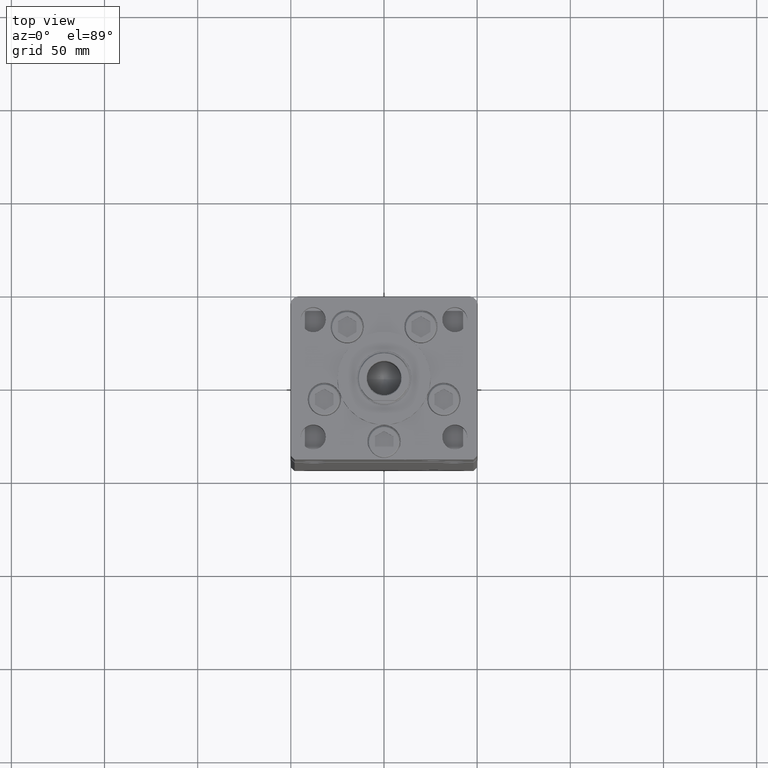
[diagram: clean part render]
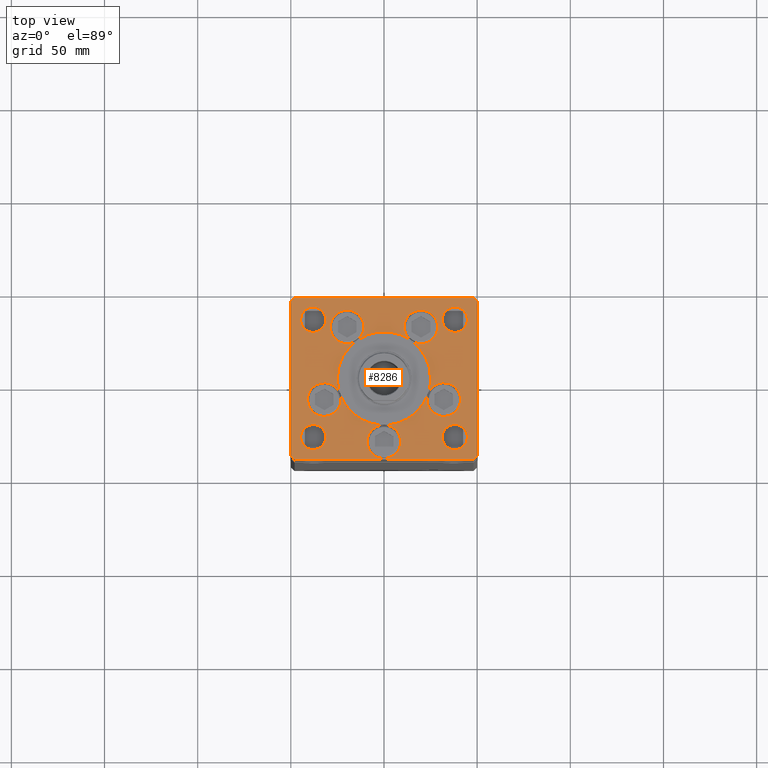
[diagram: same view with one face highlighted and labeled with its STEP entity id]
A machine part, top view. The second image highlights one B-rep face of the part: STEP entity #8286.
In plain terms, the highlighted planar face has unit normal (0, 0, 1).
Its self-contained STEP definition (entity closure, byte-faithful):
#46 = DIRECTION ( 'NONE',  ( 0.000000000000000000, 0.000000000000000000, 1.000000000000000000 ) ) ;
#328 = EDGE_CURVE ( 'NONE', #22461, #20187, #51712, .T. ) ;
#406 = AXIS2_PLACEMENT_3D ( 'NONE', #24869, #692, #4706 ) ;
#692 = DIRECTION ( 'NONE',  ( 0.000000000000000000, 0.000000000000000000, 1.000000000000000000 ) ) ;
#829 = AXIS2_PLACEMENT_3D ( 'NONE', #42482, #5675, #2156 ) ;
#1033 = DIRECTION ( 'NONE',  ( 1.000000000000000000, 0.000000000000000000, 0.000000000000000000 ) ) ;
#1066 = DIRECTION ( 'NONE',  ( -1.000000000000000000, 0.000000000000000000, 0.000000000000000000 ) ) ;
#1500 = CARTESIAN_POINT ( 'NONE',  ( 0.000000000000000000, -25.00000000000000000, 0.000000000000000000 ) ) ;
#1527 = FACE_OUTER_BOUND ( 'NONE', #51032, .T. ) ;
#1542 = DIRECTION ( 'NONE',  ( 1.000000000000000000, 0.000000000000000000, 0.000000000000000000 ) ) ;
#1574 = DIRECTION ( 'NONE',  ( 0.000000000000000000, 0.000000000000000000, 1.000000000000000000 ) ) ;
#1666 = EDGE_LOOP ( 'NONE', ( #3690, #36047 ) ) ;
#1796 = CARTESIAN_POINT ( 'NONE',  ( -38.00000000000000000, 31.50000000000000000, 0.000000000000000000 ) ) ;
#1827 = DIRECTION ( 'NONE',  ( 0.000000000000000000, 0.000000000000000000, 1.000000000000000000 ) ) ;
#1839 = DIRECTION ( 'NONE',  ( 0.000000000000000000, 0.000000000000000000, 1.000000000000000000 ) ) ;
#2020 = CARTESIAN_POINT ( 'NONE',  ( -19.82068048781374969, 27.62499999999998934, 0.000000000000000000 ) ) ;
#2038 = FACE_BOUND ( 'NONE', #20109, .T. ) ;
#2156 = DIRECTION ( 'NONE',  ( -1.000000000000000000, 0.000000000000000000, 0.000000000000000000 ) ) ;
#2264 = AXIS2_PLACEMENT_3D ( 'NONE', #5587, #4789, #1033 ) ;
#2357 = CARTESIAN_POINT ( 'NONE',  ( 19.82068048781374969, 27.62499999999998934, 0.000000000000000000 ) ) ;
#2386 = CARTESIAN_POINT ( 'NONE',  ( 0.000000000000000000, -6.938893903907228378E-15, 0.000000000000000000 ) ) ;
#2413 = CARTESIAN_POINT ( 'NONE',  ( 23.57022603955158502, -8.333333333333332149, 0.000000000000000000 ) ) ;
#2888 = VECTOR ( 'NONE', #21879, 1000.000000000000000 ) ;
#2959 = CARTESIAN_POINT ( 'NONE',  ( -41.05550741379015989, -11.33333333333332682, 0.000000000000000000 ) ) ;
#3059 = CIRCLE ( 'NONE', #34815, 9.000000000000001776 ) ;
#3216 = DIRECTION ( 'NONE',  ( 1.000000000000000000, 0.000000000000000000, 0.000000000000000000 ) ) ;
#3424 = CARTESIAN_POINT ( 'NONE',  ( -44.75000000000000000, 31.50000000000000000, 0.000000000000000000 ) ) ;
#3607 = EDGE_CURVE ( 'NONE', #6492, #36206, #25237, .T. ) ;
#3690 = ORIENTED_EDGE ( 'NONE', *, *, #7855, .T. ) ;
#3768 = DIRECTION ( 'NONE',  ( 1.000000000000000000, 0.000000000000000000, 0.000000000000000000 ) ) ;
#3960 = CIRCLE ( 'NONE', #17737, 6.749999999999999112 ) ;
#4082 = LINE ( 'NONE', #40380, #14956 ) ;
#4100 = CIRCLE ( 'NONE', #17876, 6.749999999999999112 ) ;
#4395 = EDGE_CURVE ( 'NONE', #32781, #34925, #6316, .T. ) ;
#4426 = ORIENTED_EDGE ( 'NONE', *, *, #36227, .T. ) ;
#4706 = DIRECTION ( 'NONE',  ( 1.000000000000000000, 0.000000000000000000, 0.000000000000000000 ) ) ;
#4789 = DIRECTION ( 'NONE',  ( 0.000000000000000000, 0.000000000000000000, 1.000000000000000000 ) ) ;
#4929 = CARTESIAN_POINT ( 'NONE',  ( 50.00000000000000000, 41.50000000000000711, 0.000000000000000000 ) ) ;
#5015 = CIRCLE ( 'NONE', #44493, 25.00000000000000000 ) ;
#5105 = VERTEX_POINT ( 'NONE', #12342 ) ;
#5587 = CARTESIAN_POINT ( 'NONE',  ( -32.05550741379015989, -11.33333333333332860, 0.000000000000000000 ) ) ;
#5600 = ORIENTED_EDGE ( 'NONE', *, *, #37907, .F. ) ;
#5675 = DIRECTION ( 'NONE',  ( -0.000000000000000000, -0.000000000000000000, -1.000000000000000000 ) ) ;
#5856 = EDGE_CURVE ( 'NONE', #50965, #31561, #50156, .T. ) ;
#6049 = EDGE_CURVE ( 'NONE', #36206, #19740, #46765, .T. ) ;
#6316 = CIRCLE ( 'NONE', #39812, 6.749999999999999112 ) ;
#6492 = VERTEX_POINT ( 'NONE', #2413 ) ;
#6846 = CIRCLE ( 'NONE', #30007, 6.749999999999999112 ) ;
#6929 = CARTESIAN_POINT ( 'NONE',  ( -10.82068048781375147, 27.62499999999998934, 0.000000000000000000 ) ) ;
#7016 = VERTEX_POINT ( 'NONE', #3424 ) ;
#7273 = VECTOR ( 'NONE', #12257, 1000.000000000000000 ) ;
#7855 = EDGE_CURVE ( 'NONE', #8682, #7016, #24458, .T. ) ;
#8100 = VERTEX_POINT ( 'NONE', #44553 ) ;
#8205 = CIRCLE ( 'NONE', #28788, 9.000000000000000000 ) ;
#8286 = ADVANCED_FACE ( 'NONE', ( #43156, #42900, #38336, #2038, #1527, #51503 ), #10936, .T. ) ;
#8655 = CARTESIAN_POINT ( 'NONE',  ( 19.82068048781374969, 27.62499999999998934, 0.000000000000000000 ) ) ;
#8682 = VERTEX_POINT ( 'NONE', #11406 ) ;
#8705 = ORIENTED_EDGE ( 'NONE', *, *, #18212, .F. ) ;
#8830 = CARTESIAN_POINT ( 'NONE',  ( -32.05550741379015989, -11.33333333333332860, 0.000000000000000000 ) ) ;
#8903 = CIRCLE ( 'NONE', #29475, 6.749999999999999112 ) ;
#8922 = EDGE_CURVE ( 'NONE', #45002, #50970, #3059, .T. ) ;
#8982 = AXIS2_PLACEMENT_3D ( 'NONE', #30840, #47242, #25503 ) ;
#9028 = ORIENTED_EDGE ( 'NONE', *, *, #52620, .F. ) ;
#9069 = AXIS2_PLACEMENT_3D ( 'NONE', #18460, #35094, #14695 ) ;
#9215 = ORIENTED_EDGE ( 'NONE', *, *, #17388, .F. ) ;
#9379 = AXIS2_PLACEMENT_3D ( 'NONE', #15458, #32609, #44187 ) ;
#9468 = AXIS2_PLACEMENT_3D ( 'NONE', #50742, #37838, #30041 ) ;
#9499 = EDGE_LOOP ( 'NONE', ( #50068, #31147 ) ) ;
#9715 = ORIENTED_EDGE ( 'NONE', *, *, #17600, .F. ) ;
#9771 = EDGE_CURVE ( 'NONE', #31561, #10813, #8205, .T. ) ;
#10117 = CIRCLE ( 'NONE', #43591, 9.000000000000000000 ) ;
#10376 = EDGE_CURVE ( 'NONE', #51866, #18930, #31404, .T. ) ;
#10424 = DIRECTION ( 'NONE',  ( 0.000000000000000000, 0.000000000000000000, 1.000000000000000000 ) ) ;
#10585 = DIRECTION ( 'NONE',  ( 8.360113137237620037E-17, -1.000000000000000000, 0.000000000000000000 ) ) ;
#10658 = CIRCLE ( 'NONE', #8982, 6.749999999999999112 ) ;
#10761 = ORIENTED_EDGE ( 'NONE', *, *, #39636, .F. ) ;
#10813 = VERTEX_POINT ( 'NONE', #28084 ) ;
#10898 = VECTOR ( 'NONE', #12753, 1000.000000000000114 ) ;
#10936 = PLANE ( 'NONE',  #9069 ) ;
#10977 = EDGE_CURVE ( 'NONE', #24349, #5105, #3960, .T. ) ;
#11023 = CARTESIAN_POINT ( 'NONE',  ( 47.99999999999999289, 43.50000000000000000, 0.000000000000000000 ) ) ;
#11220 = DIRECTION ( 'NONE',  ( -1.000000000000000000, 0.000000000000000000, 0.000000000000000000 ) ) ;
#11317 = DIRECTION ( 'NONE',  ( 0.000000000000000000, 0.000000000000000000, 1.000000000000000000 ) ) ;
#11406 = CARTESIAN_POINT ( 'NONE',  ( -31.25000000000000000, 31.50000000000000000, 0.000000000000000000 ) ) ;
#11457 = VERTEX_POINT ( 'NONE', #2959 ) ;
#11495 = DIRECTION ( 'NONE',  ( 0.000000000000000000, 0.000000000000000000, 1.000000000000000000 ) ) ;
#11856 = EDGE_CURVE ( 'NONE', #40120, #22461, #30460, .T. ) ;
#12257 = DIRECTION ( 'NONE',  ( 0.000000000000000000, 1.000000000000000000, 0.000000000000000000 ) ) ;
#12342 = CARTESIAN_POINT ( 'NONE',  ( 31.25000000000000000, 31.50000000000000000, 0.000000000000000000 ) ) ;
#12753 = DIRECTION ( 'NONE',  ( 0.7071067811865474617, 0.7071067811865474617, 0.000000000000000000 ) ) ;
#13175 = CARTESIAN_POINT ( 'NONE',  ( -38.00000000000000000, 31.50000000000000000, 0.000000000000000000 ) ) ;
#13318 = CARTESIAN_POINT ( 'NONE',  ( 47.99999999999999289, 43.50000000000000000, 0.000000000000000000 ) ) ;
#13674 = AXIS2_PLACEMENT_3D ( 'NONE', #8830, #49940, #1542 ) ;
#13803 = AXIS2_PLACEMENT_3D ( 'NONE', #17905, #26474, #22196 ) ;
#13924 = CARTESIAN_POINT ( 'NONE',  ( -48.00000000000000000, 43.49999999999997158, 0.000000000000000000 ) ) ;
#13978 = VERTEX_POINT ( 'NONE', #37497 ) ;
#14622 = EDGE_LOOP ( 'NONE', ( #9715, #23027, #42469, #9028, #25514, #22426, #24587, #48462, #15959, #20949, #23475, #29834, #10761, #28822, #8705, #5600, #17708, #9215, #30220, #51122, #15169, #48153 ) ) ;
#14695 = DIRECTION ( 'NONE',  ( 1.000000000000000000, 0.000000000000000000, 0.000000000000000000 ) ) ;
#14713 = DIRECTION ( 'NONE',  ( 1.000000000000000000, 0.000000000000000000, 0.000000000000000000 ) ) ;
#14956 = VECTOR ( 'NONE', #24792, 999.9999999999998863 ) ;
#15051 = EDGE_CURVE ( 'NONE', #28239, #40120, #38624, .T. ) ;
#15169 = ORIENTED_EDGE ( 'NONE', *, *, #9771, .F. ) ;
#15458 = CARTESIAN_POINT ( 'NONE',  ( -32.05550741379015989, -11.33333333333332860, 0.000000000000000000 ) ) ;
#15586 = DIRECTION ( 'NONE',  ( 1.000000000000000000, 0.000000000000000000, 0.000000000000000000 ) ) ;
#15797 = DIRECTION ( 'NONE',  ( 1.000000000000000000, 0.000000000000000000, 0.000000000000000000 ) ) ;
#15959 = ORIENTED_EDGE ( 'NONE', *, *, #52893, .F. ) ;
#16153 = DIRECTION ( 'NONE',  ( 1.000000000000000000, 0.000000000000000000, 0.000000000000000000 ) ) ;
#16327 = EDGE_LOOP ( 'NONE', ( #35904, #48474 ) ) ;
#16448 = DIRECTION ( 'NONE',  ( 1.000000000000000000, 0.000000000000000000, 0.000000000000000000 ) ) ;
#16732 = AXIS2_PLACEMENT_3D ( 'NONE', #21746, #1827, #38117 ) ;
#16870 = VERTEX_POINT ( 'NONE', #48213 ) ;
#16960 = CARTESIAN_POINT ( 'NONE',  ( 23.05550741379015633, -11.33333333333332682, 0.000000000000000000 ) ) ;
#17168 = CARTESIAN_POINT ( 'NONE',  ( 28.82068048781374969, 27.62499999999998934, 0.000000000000000000 ) ) ;
#17388 = EDGE_CURVE ( 'NONE', #31658, #8100, #5015, .T. ) ;
#17600 = EDGE_CURVE ( 'NONE', #19740, #50965, #53087, .T. ) ;
#17708 = ORIENTED_EDGE ( 'NONE', *, *, #18853, .F. ) ;
#17737 = AXIS2_PLACEMENT_3D ( 'NONE', #43612, #38774, #42546 ) ;
#17848 = LINE ( 'NONE', #18108, #2888 ) ;
#17876 = AXIS2_PLACEMENT_3D ( 'NONE', #38087, #22701, #47685 ) ;
#17905 = CARTESIAN_POINT ( 'NONE',  ( 32.05550741379015989, -11.33333333333332860, 0.000000000000000000 ) ) ;
#18108 = CARTESIAN_POINT ( 'NONE',  ( -48.00000000000000711, -43.50000000000002842, 0.000000000000000000 ) ) ;
#18212 = EDGE_CURVE ( 'NONE', #35829, #8100, #40224, .T. ) ;
#18460 = CARTESIAN_POINT ( 'NONE',  ( 0.000000000000000000, 0.000000000000000000, 0.000000000000000000 ) ) ;
#18536 = VERTEX_POINT ( 'NONE', #32667 ) ;
#18853 = EDGE_CURVE ( 'NONE', #8100, #11457, #51404, .T. ) ;
#18930 = VERTEX_POINT ( 'NONE', #20531 ) ;
#18986 = LINE ( 'NONE', #13318, #35655 ) ;
#18991 = DIRECTION ( 'NONE',  ( 0.000000000000000000, 0.000000000000000000, 1.000000000000000000 ) ) ;
#19093 = CARTESIAN_POINT ( 'NONE',  ( -19.82068048781374969, 27.62499999999998934, 0.000000000000000000 ) ) ;
#19238 = DIRECTION ( 'NONE',  ( 1.000000000000000000, 0.000000000000000000, 0.000000000000000000 ) ) ;
#19517 = CARTESIAN_POINT ( 'NONE',  ( 25.00000000000000000, -3.877276906038844941E-15, 0.000000000000000000 ) ) ;
#19691 = CARTESIAN_POINT ( 'NONE',  ( 0.000000000000000000, -34.00000000000000000, 0.000000000000000000 ) ) ;
#19740 = VERTEX_POINT ( 'NONE', #44655 ) ;
#19919 = DIRECTION ( 'NONE',  ( 0.000000000000000000, 0.000000000000000000, 1.000000000000000000 ) ) ;
#20109 = EDGE_LOOP ( 'NONE', ( #41185, #51090 ) ) ;
#20187 = VERTEX_POINT ( 'NONE', #45656 ) ;
#20505 = CIRCLE ( 'NONE', #50553, 9.000000000000000000 ) ;
#20531 = CARTESIAN_POINT ( 'NONE',  ( 10.82068048781375147, 27.62499999999998934, 0.000000000000000000 ) ) ;
#20949 = ORIENTED_EDGE ( 'NONE', *, *, #24566, .F. ) ;
#20952 = VERTEX_POINT ( 'NONE', #32747 ) ;
#21320 = VERTEX_POINT ( 'NONE', #1500 ) ;
#21746 = CARTESIAN_POINT ( 'NONE',  ( 0.000000000000000000, -6.938893903907228378E-15, 0.000000000000000000 ) ) ;
#21872 = LINE ( 'NONE', #50088, #10898 ) ;
#21879 = DIRECTION ( 'NONE',  ( 1.000000000000000000, 1.156482317317871331E-15, 0.000000000000000000 ) ) ;
#21944 = CIRCLE ( 'NONE', #45984, 8.999999999999998224 ) ;
#22196 = DIRECTION ( 'NONE',  ( 1.000000000000000000, 0.000000000000000000, 0.000000000000000000 ) ) ;
#22426 = ORIENTED_EDGE ( 'NONE', *, *, #3607, .F. ) ;
#22461 = VERTEX_POINT ( 'NONE', #50639 ) ;
#22671 = AXIS2_PLACEMENT_3D ( 'NONE', #34852, #10424, #35114 ) ;
#22701 = DIRECTION ( 'NONE',  ( 0.000000000000000000, 0.000000000000000000, 1.000000000000000000 ) ) ;
#22752 = DIRECTION ( 'NONE',  ( 1.000000000000000000, 0.000000000000000000, 0.000000000000000000 ) ) ;
#23027 = ORIENTED_EDGE ( 'NONE', *, *, #35810, .F. ) ;
#23165 = DIRECTION ( 'NONE',  ( 1.000000000000000000, 0.000000000000000000, 0.000000000000000000 ) ) ;
#23475 = ORIENTED_EDGE ( 'NONE', *, *, #44916, .F. ) ;
#23581 = CIRCLE ( 'NONE', #406, 9.000000000000001776 ) ;
#23695 = DIRECTION ( 'NONE',  ( -1.000000000000000000, 0.000000000000000000, 0.000000000000000000 ) ) ;
#24208 = DIRECTION ( 'NONE',  ( 0.000000000000000000, 0.000000000000000000, 1.000000000000000000 ) ) ;
#24325 = LINE ( 'NONE', #40706, #7273 ) ;
#24349 = VERTEX_POINT ( 'NONE', #43220 ) ;
#24439 = CARTESIAN_POINT ( 'NONE',  ( -9.000000000000000000, -34.00000000000000000, 0.000000000000000000 ) ) ;
#24458 = CIRCLE ( 'NONE', #49370, 6.749999999999999112 ) ;
#24566 = EDGE_CURVE ( 'NONE', #21320, #6492, #37141, .T. ) ;
#24587 = ORIENTED_EDGE ( 'NONE', *, *, #33037, .F. ) ;
#24792 = DIRECTION ( 'NONE',  ( -0.7071067811865512365, 0.7071067811865439090, 0.000000000000000000 ) ) ;
#24869 = CARTESIAN_POINT ( 'NONE',  ( 32.05550741379015989, -11.33333333333332860, 0.000000000000000000 ) ) ;
#24913 = CARTESIAN_POINT ( 'NONE',  ( -50.00000000000000711, 41.49999999999999289, 0.000000000000000000 ) ) ;
#24976 = CARTESIAN_POINT ( 'NONE',  ( -48.00000000000000000, 43.49999999999997158, 0.000000000000000000 ) ) ;
#25174 = ORIENTED_EDGE ( 'NONE', *, *, #38555, .T. ) ;
#25237 = CIRCLE ( 'NONE', #22671, 25.00000000000000000 ) ;
#25503 = DIRECTION ( 'NONE',  ( 1.000000000000000000, 0.000000000000000000, 0.000000000000000000 ) ) ;
#25514 = ORIENTED_EDGE ( 'NONE', *, *, #6049, .F. ) ;
#25548 = VECTOR ( 'NONE', #46695, 1000.000000000000000 ) ;
#26474 = DIRECTION ( 'NONE',  ( 0.000000000000000000, 0.000000000000000000, 1.000000000000000000 ) ) ;
#26913 = EDGE_CURVE ( 'NONE', #20187, #18536, #17848, .T. ) ;
#26951 = AXIS2_PLACEMENT_3D ( 'NONE', #19093, #11317, #3216 ) ;
#27053 = CARTESIAN_POINT ( 'NONE',  ( 0.000000000000000000, -6.938893903907228378E-15, 0.000000000000000000 ) ) ;
#27175 = CARTESIAN_POINT ( 'NONE',  ( 9.000000000000000000, -34.00000000000000000, 0.000000000000000000 ) ) ;
#27854 = DIRECTION ( 'NONE',  ( 0.000000000000000000, 0.000000000000000000, 1.000000000000000000 ) ) ;
#28084 = CARTESIAN_POINT ( 'NONE',  ( -28.82068048781374969, 27.62499999999998934, 0.000000000000000000 ) ) ;
#28239 = VERTEX_POINT ( 'NONE', #24976 ) ;
#28551 = AXIS2_PLACEMENT_3D ( 'NONE', #30804, #18991, #22752 ) ;
#28788 = AXIS2_PLACEMENT_3D ( 'NONE', #39809, #24208, #3768 ) ;
#28822 = ORIENTED_EDGE ( 'NONE', *, *, #38382, .F. ) ;
#29106 = EDGE_CURVE ( 'NONE', #20952, #13978, #8903, .T. ) ;
#29475 = AXIS2_PLACEMENT_3D ( 'NONE', #31203, #40335, #23695 ) ;
#29690 = DIRECTION ( 'NONE',  ( -1.000000000000000000, -2.891205793294678326E-16, 0.000000000000000000 ) ) ;
#29747 = CIRCLE ( 'NONE', #2264, 9.000000000000001776 ) ;
#29787 = AXIS2_PLACEMENT_3D ( 'NONE', #19691, #31771, #48177 ) ;
#29834 = ORIENTED_EDGE ( 'NONE', *, *, #35106, .F. ) ;
#29968 = CARTESIAN_POINT ( 'NONE',  ( -25.00000000000000000, -6.938893903907228378E-15, 0.000000000000000000 ) ) ;
#30007 = AXIS2_PLACEMENT_3D ( 'NONE', #1796, #34841, #11220 ) ;
#30041 = DIRECTION ( 'NONE',  ( 1.000000000000000000, 0.000000000000000000, 0.000000000000000000 ) ) ;
#30220 = ORIENTED_EDGE ( 'NONE', *, *, #45774, .F. ) ;
#30259 = DIRECTION ( 'NONE',  ( 0.000000000000000000, 0.000000000000000000, 1.000000000000000000 ) ) ;
#30460 = LINE ( 'NONE', #46863, #37470 ) ;
#30591 = CARTESIAN_POINT ( 'NONE',  ( -23.05550741379015633, -11.33333333333332860, 0.000000000000000000 ) ) ;
#30804 = CARTESIAN_POINT ( 'NONE',  ( 0.000000000000000000, -6.938893903907228378E-15, 0.000000000000000000 ) ) ;
#30840 = CARTESIAN_POINT ( 'NONE',  ( -38.00000000000000711, -31.50000000000000711, 0.000000000000000000 ) ) ;
#31138 = DIRECTION ( 'NONE',  ( 0.000000000000000000, 0.000000000000000000, 1.000000000000000000 ) ) ;
#31147 = ORIENTED_EDGE ( 'NONE', *, *, #42020, .F. ) ;
#31203 = CARTESIAN_POINT ( 'NONE',  ( 38.00000000000000711, -31.50000000000000711, 0.000000000000000000 ) ) ;
#31404 = CIRCLE ( 'NONE', #46039, 8.999999999999998224 ) ;
#31456 = EDGE_CURVE ( 'NONE', #34925, #32781, #10658, .T. ) ;
#31561 = VERTEX_POINT ( 'NONE', #6929 ) ;
#31658 = VERTEX_POINT ( 'NONE', #29968 ) ;
#31705 = ORIENTED_EDGE ( 'NONE', *, *, #32007, .T. ) ;
#31771 = DIRECTION ( 'NONE',  ( 0.000000000000000000, 0.000000000000000000, 1.000000000000000000 ) ) ;
#32007 = EDGE_CURVE ( 'NONE', #38599, #33466, #4082, .T. ) ;
#32078 = DIRECTION ( 'NONE',  ( 0.7071067811865487940, -0.7071067811865463515, 0.000000000000000000 ) ) ;
#32609 = DIRECTION ( 'NONE',  ( 0.000000000000000000, 0.000000000000000000, 1.000000000000000000 ) ) ;
#32667 = CARTESIAN_POINT ( 'NONE',  ( 48.00000000000000711, -43.49999999999992184, 0.000000000000000000 ) ) ;
#32747 = CARTESIAN_POINT ( 'NONE',  ( 44.75000000000000711, -31.50000000000000711, 0.000000000000000000 ) ) ;
#32781 = VERTEX_POINT ( 'NONE', #43168 ) ;
#33037 = EDGE_CURVE ( 'NONE', #50970, #6492, #23581, .T. ) ;
#33172 = EDGE_CURVE ( 'NONE', #16870, #38599, #24325, .T. ) ;
#33254 = CARTESIAN_POINT ( 'NONE',  ( 41.05550741379015989, -11.33333333333332860, 0.000000000000000000 ) ) ;
#33466 = VERTEX_POINT ( 'NONE', #11023 ) ;
#34154 = AXIS2_PLACEMENT_3D ( 'NONE', #45871, #30259, #42096 ) ;
#34534 = DIRECTION ( 'NONE',  ( 1.000000000000000000, 0.000000000000000000, 0.000000000000000000 ) ) ;
#34558 = ORIENTED_EDGE ( 'NONE', *, *, #15051, .T. ) ;
#34815 = AXIS2_PLACEMENT_3D ( 'NONE', #43569, #19919, #23165 ) ;
#34841 = DIRECTION ( 'NONE',  ( -0.000000000000000000, -0.000000000000000000, -1.000000000000000000 ) ) ;
#34852 = CARTESIAN_POINT ( 'NONE',  ( 0.000000000000000000, -6.938893903907228378E-15, 0.000000000000000000 ) ) ;
#34925 = VERTEX_POINT ( 'NONE', #52929 ) ;
#35094 = DIRECTION ( 'NONE',  ( -0.000000000000000000, 0.000000000000000000, 1.000000000000000000 ) ) ;
#35106 = EDGE_CURVE ( 'NONE', #50530, #51440, #42516, .T. ) ;
#35114 = DIRECTION ( 'NONE',  ( 1.000000000000000000, 0.000000000000000000, 0.000000000000000000 ) ) ;
#35655 = VECTOR ( 'NONE', #29690, 1000.000000000000000 ) ;
#35810 = EDGE_CURVE ( 'NONE', #18930, #19740, #21944, .T. ) ;
#35829 = VERTEX_POINT ( 'NONE', #30591 ) ;
#35904 = ORIENTED_EDGE ( 'NONE', *, *, #29106, .T. ) ;
#36047 = ORIENTED_EDGE ( 'NONE', *, *, #51068, .T. ) ;
#36067 = CIRCLE ( 'NONE', #13803, 9.000000000000001776 ) ;
#36206 = VERTEX_POINT ( 'NONE', #19517 ) ;
#36227 = EDGE_CURVE ( 'NONE', #33466, #28239, #18986, .T. ) ;
#36393 = ORIENTED_EDGE ( 'NONE', *, *, #33172, .T. ) ;
#36437 = CARTESIAN_POINT ( 'NONE',  ( -38.00000000000000711, -31.50000000000000711, 0.000000000000000000 ) ) ;
#37141 = CIRCLE ( 'NONE', #28551, 25.00000000000000000 ) ;
#37470 = VECTOR ( 'NONE', #10585, 1000.000000000000000 ) ;
#37497 = CARTESIAN_POINT ( 'NONE',  ( 31.25000000000000711, -31.50000000000000711, 0.000000000000000000 ) ) ;
#37838 = DIRECTION ( 'NONE',  ( 0.000000000000000000, 0.000000000000000000, 1.000000000000000000 ) ) ;
#37907 = EDGE_CURVE ( 'NONE', #11457, #35829, #29747, .T. ) ;
#38077 = CARTESIAN_POINT ( 'NONE',  ( -14.57402977045128978, 20.31249999999999289, 0.000000000000000000 ) ) ;
#38087 = CARTESIAN_POINT ( 'NONE',  ( 38.00000000000000000, 31.50000000000000000, 0.000000000000000000 ) ) ;
#38117 = DIRECTION ( 'NONE',  ( 1.000000000000000000, 0.000000000000000000, 0.000000000000000000 ) ) ;
#38336 = FACE_BOUND ( 'NONE', #9499, .T. ) ;
#38382 = EDGE_CURVE ( 'NONE', #8100, #21320, #45170, .T. ) ;
#38386 = CARTESIAN_POINT ( 'NONE',  ( 0.000000000000000000, -34.00000000000000000, 0.000000000000000000 ) ) ;
#38555 = EDGE_CURVE ( 'NONE', #18536, #16870, #21872, .T. ) ;
#38599 = VERTEX_POINT ( 'NONE', #4929 ) ;
#38624 = LINE ( 'NONE', #13924, #25548 ) ;
#38774 = DIRECTION ( 'NONE',  ( 0.000000000000000000, 0.000000000000000000, 1.000000000000000000 ) ) ;
#38911 = DIRECTION ( 'NONE',  ( 1.000000000000000000, 0.000000000000000000, 0.000000000000000000 ) ) ;
#39636 = EDGE_CURVE ( 'NONE', #21320, #50530, #40931, .T. ) ;
#39809 = CARTESIAN_POINT ( 'NONE',  ( -19.82068048781374969, 27.62499999999998934, 0.000000000000000000 ) ) ;
#39812 = AXIS2_PLACEMENT_3D ( 'NONE', #36437, #11495, #52327 ) ;
#40120 = VERTEX_POINT ( 'NONE', #24913 ) ;
#40173 = ORIENTED_EDGE ( 'NONE', *, *, #26913, .T. ) ;
#40224 = CIRCLE ( 'NONE', #13674, 9.000000000000001776 ) ;
#40335 = DIRECTION ( 'NONE',  ( -0.000000000000000000, -0.000000000000000000, -1.000000000000000000 ) ) ;
#40380 = CARTESIAN_POINT ( 'NONE',  ( 50.00000000000000000, 41.50000000000000711, 0.000000000000000000 ) ) ;
#40571 = DIRECTION ( 'NONE',  ( 0.000000000000000000, 0.000000000000000000, 1.000000000000000000 ) ) ;
#40706 = CARTESIAN_POINT ( 'NONE',  ( 50.00000000000000000, -41.49999999999992895, 0.000000000000000000 ) ) ;
#40931 = CIRCLE ( 'NONE', #29787, 9.000000000000000000 ) ;
#41185 = ORIENTED_EDGE ( 'NONE', *, *, #4395, .F. ) ;
#41202 = CIRCLE ( 'NONE', #9468, 8.999999999999998224 ) ;
#41547 = VECTOR ( 'NONE', #32078, 1000.000000000000000 ) ;
#42020 = EDGE_CURVE ( 'NONE', #5105, #24349, #4100, .T. ) ;
#42096 = DIRECTION ( 'NONE',  ( 1.000000000000000000, 0.000000000000000000, 0.000000000000000000 ) ) ;
#42469 = ORIENTED_EDGE ( 'NONE', *, *, #10376, .F. ) ;
#42482 = CARTESIAN_POINT ( 'NONE',  ( 38.00000000000000711, -31.50000000000000711, 0.000000000000000000 ) ) ;
#42516 = CIRCLE ( 'NONE', #48552, 9.000000000000000000 ) ;
#42546 = DIRECTION ( 'NONE',  ( 1.000000000000000000, 0.000000000000000000, 0.000000000000000000 ) ) ;
#42858 = CIRCLE ( 'NONE', #829, 6.749999999999999112 ) ;
#42900 = FACE_BOUND ( 'NONE', #1666, .T. ) ;
#43121 = DIRECTION ( 'NONE',  ( 0.000000000000000000, 0.000000000000000000, 1.000000000000000000 ) ) ;
#43156 = FACE_BOUND ( 'NONE', #14622, .T. ) ;
#43168 = CARTESIAN_POINT ( 'NONE',  ( -31.25000000000000711, -31.50000000000000711, 0.000000000000000000 ) ) ;
#43220 = CARTESIAN_POINT ( 'NONE',  ( 44.75000000000000000, 31.50000000000000000, 0.000000000000000000 ) ) ;
#43569 = CARTESIAN_POINT ( 'NONE',  ( 32.05550741379015989, -11.33333333333332860, 0.000000000000000000 ) ) ;
#43591 = AXIS2_PLACEMENT_3D ( 'NONE', #2020, #46917, #19238 ) ;
#43612 = CARTESIAN_POINT ( 'NONE',  ( 38.00000000000000000, 31.50000000000000000, 0.000000000000000000 ) ) ;
#43956 = ORIENTED_EDGE ( 'NONE', *, *, #328, .T. ) ;
#44187 = DIRECTION ( 'NONE',  ( 1.000000000000000000, 0.000000000000000000, 0.000000000000000000 ) ) ;
#44438 = CIRCLE ( 'NONE', #34154, 25.00000000000000000 ) ;
#44493 = AXIS2_PLACEMENT_3D ( 'NONE', #2386, #31138, #15586 ) ;
#44553 = CARTESIAN_POINT ( 'NONE',  ( -23.57022603955158502, -8.333333333333332149, 0.000000000000000000 ) ) ;
#44655 = CARTESIAN_POINT ( 'NONE',  ( 14.57402977045128623, 20.31249999999998579, 0.000000000000000000 ) ) ;
#44916 = EDGE_CURVE ( 'NONE', #51440, #21320, #20505, .T. ) ;
#45002 = VERTEX_POINT ( 'NONE', #16960 ) ;
#45170 = CIRCLE ( 'NONE', #50365, 25.00000000000000000 ) ;
#45656 = CARTESIAN_POINT ( 'NONE',  ( -48.00000000000000711, -43.50000000000002842, 0.000000000000000000 ) ) ;
#45681 = DIRECTION ( 'NONE',  ( -0.000000000000000000, -0.000000000000000000, -1.000000000000000000 ) ) ;
#45774 = EDGE_CURVE ( 'NONE', #50965, #31658, #44438, .T. ) ;
#45792 = EDGE_CURVE ( 'NONE', #10813, #50965, #10117, .T. ) ;
#45871 = CARTESIAN_POINT ( 'NONE',  ( 0.000000000000000000, -6.938893903907228378E-15, 0.000000000000000000 ) ) ;
#45984 = AXIS2_PLACEMENT_3D ( 'NONE', #2357, #1839, #38911 ) ;
#46018 = ORIENTED_EDGE ( 'NONE', *, *, #11856, .T. ) ;
#46039 = AXIS2_PLACEMENT_3D ( 'NONE', #8655, #46, #16448 ) ;
#46695 = DIRECTION ( 'NONE',  ( -0.7071067811865536790, -0.7071067811865414665, 0.000000000000000000 ) ) ;
#46765 = CIRCLE ( 'NONE', #16732, 25.00000000000000000 ) ;
#46863 = CARTESIAN_POINT ( 'NONE',  ( -50.00000000000000711, 41.49999999999999289, 0.000000000000000000 ) ) ;
#46917 = DIRECTION ( 'NONE',  ( 0.000000000000000000, 0.000000000000000000, 1.000000000000000000 ) ) ;
#47242 = DIRECTION ( 'NONE',  ( 0.000000000000000000, 0.000000000000000000, 1.000000000000000000 ) ) ;
#47426 = CARTESIAN_POINT ( 'NONE',  ( 0.000000000000000000, -6.938893903907228378E-15, 0.000000000000000000 ) ) ;
#47685 = DIRECTION ( 'NONE',  ( 1.000000000000000000, 0.000000000000000000, 0.000000000000000000 ) ) ;
#48153 = ORIENTED_EDGE ( 'NONE', *, *, #5856, .F. ) ;
#48177 = DIRECTION ( 'NONE',  ( 1.000000000000000000, 0.000000000000000000, 0.000000000000000000 ) ) ;
#48213 = CARTESIAN_POINT ( 'NONE',  ( 50.00000000000000000, -41.49999999999992895, 0.000000000000000000 ) ) ;
#48462 = ORIENTED_EDGE ( 'NONE', *, *, #8922, .F. ) ;
#48474 = ORIENTED_EDGE ( 'NONE', *, *, #50366, .T. ) ;
#48552 = AXIS2_PLACEMENT_3D ( 'NONE', #38386, #1574, #15797 ) ;
#49370 = AXIS2_PLACEMENT_3D ( 'NONE', #13175, #45681, #1066 ) ;
#49940 = DIRECTION ( 'NONE',  ( 0.000000000000000000, 0.000000000000000000, 1.000000000000000000 ) ) ;
#50068 = ORIENTED_EDGE ( 'NONE', *, *, #10977, .F. ) ;
#50088 = CARTESIAN_POINT ( 'NONE',  ( 48.00000000000000711, -43.49999999999992184, 0.000000000000000000 ) ) ;
#50156 = CIRCLE ( 'NONE', #26951, 9.000000000000000000 ) ;
#50365 = AXIS2_PLACEMENT_3D ( 'NONE', #47426, #43121, #34534 ) ;
#50366 = EDGE_CURVE ( 'NONE', #13978, #20952, #42858, .T. ) ;
#50526 = AXIS2_PLACEMENT_3D ( 'NONE', #27053, #27854, #14713 ) ;
#50530 = VERTEX_POINT ( 'NONE', #24439 ) ;
#50553 = AXIS2_PLACEMENT_3D ( 'NONE', #52690, #40571, #16153 ) ;
#50639 = CARTESIAN_POINT ( 'NONE',  ( -50.00000000000000000, -41.50000000000004263, 0.000000000000000000 ) ) ;
#50742 = CARTESIAN_POINT ( 'NONE',  ( 19.82068048781374969, 27.62499999999998934, 0.000000000000000000 ) ) ;
#50965 = VERTEX_POINT ( 'NONE', #38077 ) ;
#50970 = VERTEX_POINT ( 'NONE', #33254 ) ;
#51032 = EDGE_LOOP ( 'NONE', ( #43956, #40173, #25174, #36393, #31705, #4426, #34558, #46018 ) ) ;
#51068 = EDGE_CURVE ( 'NONE', #7016, #8682, #6846, .T. ) ;
#51090 = ORIENTED_EDGE ( 'NONE', *, *, #31456, .F. ) ;
#51122 = ORIENTED_EDGE ( 'NONE', *, *, #45792, .F. ) ;
#51404 = CIRCLE ( 'NONE', #9379, 9.000000000000001776 ) ;
#51440 = VERTEX_POINT ( 'NONE', #27175 ) ;
#51503 = FACE_BOUND ( 'NONE', #16327, .T. ) ;
#51712 = LINE ( 'NONE', #52514, #41547 ) ;
#51866 = VERTEX_POINT ( 'NONE', #17168 ) ;
#52327 = DIRECTION ( 'NONE',  ( 1.000000000000000000, 0.000000000000000000, 0.000000000000000000 ) ) ;
#52514 = CARTESIAN_POINT ( 'NONE',  ( -50.00000000000000000, -41.50000000000004263, 0.000000000000000000 ) ) ;
#52620 = EDGE_CURVE ( 'NONE', #19740, #51866, #41202, .T. ) ;
#52690 = CARTESIAN_POINT ( 'NONE',  ( 0.000000000000000000, -34.00000000000000000, 0.000000000000000000 ) ) ;
#52893 = EDGE_CURVE ( 'NONE', #6492, #45002, #36067, .T. ) ;
#52929 = CARTESIAN_POINT ( 'NONE',  ( -44.75000000000000711, -31.50000000000000711, 0.000000000000000000 ) ) ;
#53087 = CIRCLE ( 'NONE', #50526, 25.00000000000000000 ) ;